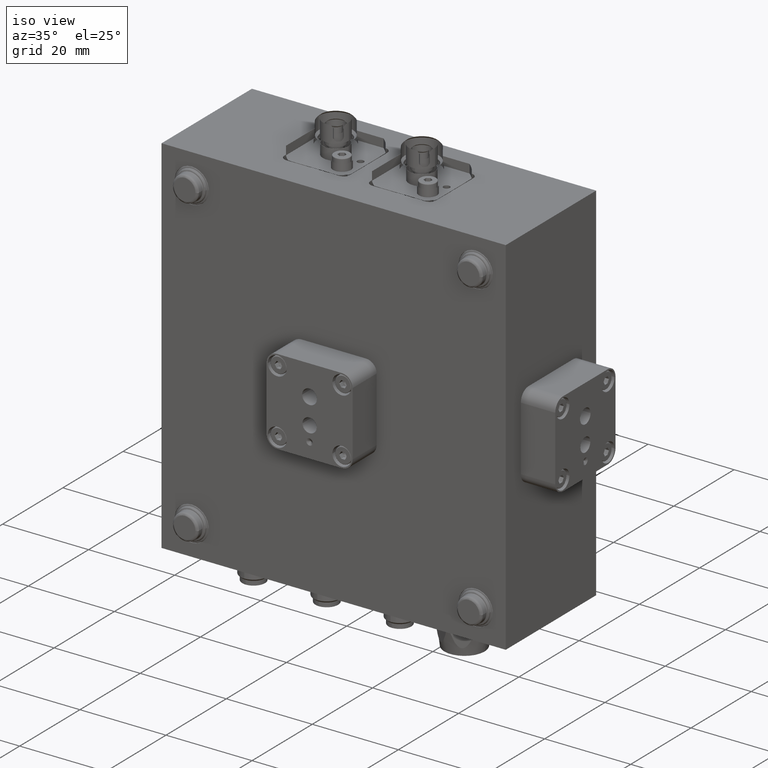
[diagram: clean part render]
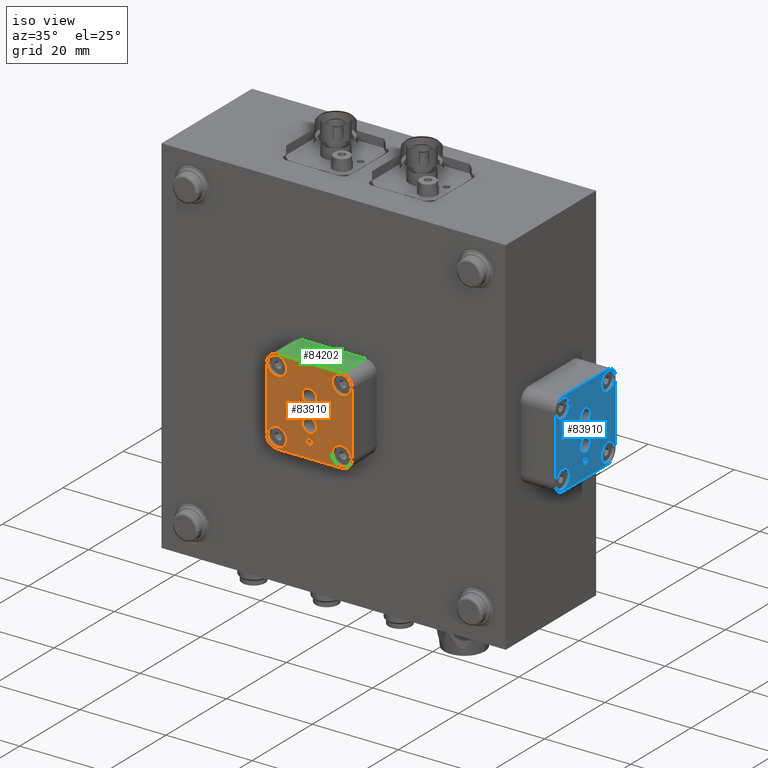
[diagram: same view with three faces highlighted in distinct colors, each labeled with its STEP entity id]
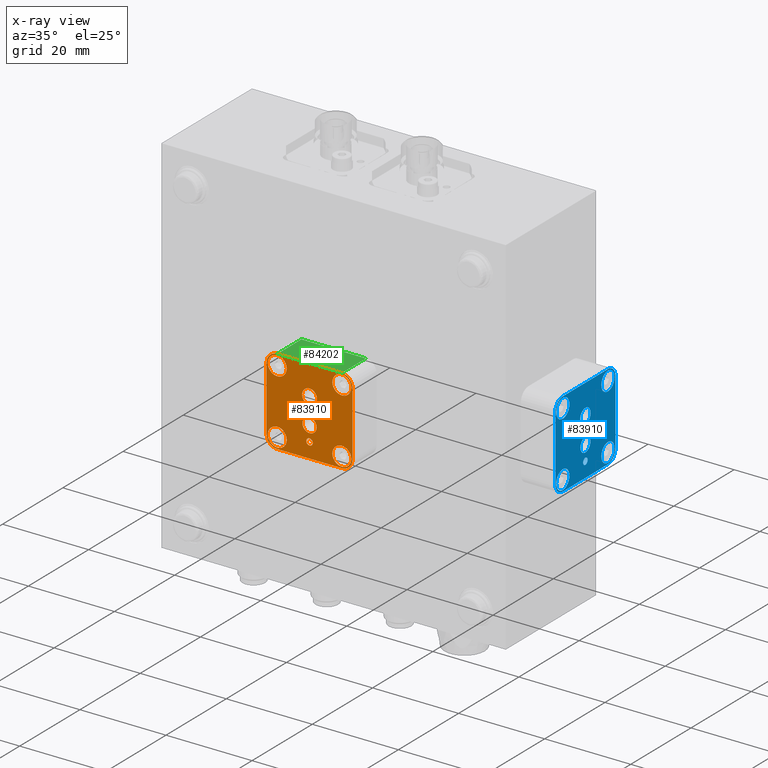
[diagram: x-ray of the same camera — body ghosted, the three highlighted faces saturated]
A machine part, iso view with three faces highlighted in distinct colors.
The next image is the same camera in x-ray (body ghosted, the three faces saturated) — at least one of them is partly hidden behind the body in this view.
Their STEP definitions:

[orange] entity #83910 — the highlighted planar face has unit normal (0, 1, -0).
#53152 = AXIS2_PLACEMENT_3D ( 'NONE', #53165, #53163, #53162 ) ;
#53155 = CIRCLE ( 'NONE', #53152, 1.727200000000005200 ) ;
#53162 = DIRECTION ( 'NONE',  ( 0.0000000000000000000, 0.0000000000000000000, 1.000000000000000000 ) ) ;
#53163 = DIRECTION ( 'NONE',  ( 0.0000000000000000000, 1.000000000000000000, -0.0000000000000000000 ) ) ;
#53165 = CARTESIAN_POINT ( 'NONE',  ( -3.000000000000010700, 0.0000000000000000000, -6.071532165918824800E-015 ) ) ;
#53470 = CARTESIAN_POINT ( 'NONE',  ( 6.500000000000026600, 0.0000000000000000000, 0.7500000000000022200 ) ) ;
#53508 = CARTESIAN_POINT ( 'NONE',  ( 6.500000000000026600, 0.0000000000000000000, -0.7499999999999997800 ) ) ;
#53554 = CIRCLE ( 'NONE', #53631, 0.7500000000000022200 ) ;
#53626 = DIRECTION ( 'NONE',  ( 0.0000000000000000000, 0.0000000000000000000, 1.000000000000000000 ) ) ;
#53628 = DIRECTION ( 'NONE',  ( 0.0000000000000000000, 1.000000000000000000, -0.0000000000000000000 ) ) ;
#53629 = CARTESIAN_POINT ( 'NONE',  ( 6.500000000000026600, 0.0000000000000000000, 0.0000000000000000000 ) ) ;
#53631 = AXIS2_PLACEMENT_3D ( 'NONE', #53629, #53628, #53626 ) ;
#53887 = CARTESIAN_POINT ( 'NONE',  ( -3.000000000000010700, 0.0000000000000000000, -1.727200000000005800 ) ) ;
#54124 = CARTESIAN_POINT ( 'NONE',  ( -3.000000000000010700, 0.0000000000000000000, 1.727199999999999000 ) ) ;
#54289 = DIRECTION ( 'NONE',  ( 0.0000000000000000000, 0.0000000000000000000, 1.000000000000000000 ) ) ;
#54290 = DIRECTION ( 'NONE',  ( 0.0000000000000000000, 1.000000000000000000, -0.0000000000000000000 ) ) ;
#54292 = CARTESIAN_POINT ( 'NONE',  ( 3.000000000000010200, 0.0000000000000000000, 0.0000000000000000000 ) ) ;
#54293 = AXIS2_PLACEMENT_3D ( 'NONE', #54292, #54290, #54289 ) ;
#54307 = CIRCLE ( 'NONE', #54293, 1.650000000000003900 ) ;
#54531 = CARTESIAN_POINT ( 'NONE',  ( -7.500000000000031100, 0.0000000000000000000, -5.300000000000022000 ) ) ;
#54607 = CARTESIAN_POINT ( 'NONE',  ( 3.000000000000010200, 0.0000000000000000000, 1.650000000000003900 ) ) ;
#54613 = CARTESIAN_POINT ( 'NONE',  ( 3.000000000000010200, 0.0000000000000000000, -1.649999999999998600 ) ) ;
#54655 = CARTESIAN_POINT ( 'NONE',  ( 7.500000000000024000, 0.0000000000000000000, 5.300000000000024700 ) ) ;
#54746 = DIRECTION ( 'NONE',  ( 0.0000000000000000000, 0.0000000000000000000, 1.000000000000000000 ) ) ;
#54747 = DIRECTION ( 'NONE',  ( 0.0000000000000000000, 1.000000000000000000, -0.0000000000000000000 ) ) ;
#54749 = CARTESIAN_POINT ( 'NONE',  ( -7.500000000000031100, 0.0000000000000000000, -7.500000000000022200 ) ) ;
#54760 = AXIS2_PLACEMENT_3D ( 'NONE', #54749, #54747, #54746 ) ;
#54762 = CIRCLE ( 'NONE', #54760, 2.200000000000000600 ) ;
#54769 = CARTESIAN_POINT ( 'NONE',  ( -7.500000000000031100, 0.0000000000000000000, -9.700000000000015300 ) ) ;
#55203 = CARTESIAN_POINT ( 'NONE',  ( -7.500000000000024000, 0.0000000000000000000, 5.300000000000030900 ) ) ;
#55407 = CARTESIAN_POINT ( 'NONE',  ( -7.500000000000024000, 0.0000000000000000000, 9.700000000000024200 ) ) ;
#55631 = DIRECTION ( 'NONE',  ( 0.0000000000000000000, 0.0000000000000000000, 1.000000000000000000 ) ) ;
#55633 = DIRECTION ( 'NONE',  ( 0.0000000000000000000, 1.000000000000000000, -0.0000000000000000000 ) ) ;
#55651 = CARTESIAN_POINT ( 'NONE',  ( -7.500000000000024000, 0.0000000000000000000, 7.500000000000024900 ) ) ;
#55659 = CIRCLE ( 'NONE', #55662, 2.199999999999999700 ) ;
#55662 = AXIS2_PLACEMENT_3D ( 'NONE', #55651, #55633, #55631 ) ;
#55750 = CIRCLE ( 'NONE', #55824, 2.199999999999999700 ) ;
#55757 = CARTESIAN_POINT ( 'NONE',  ( 7.500000000000024000, 0.0000000000000000000, 9.700000000000017100 ) ) ;
#55805 = DIRECTION ( 'NONE',  ( 0.0000000000000000000, 0.0000000000000000000, 1.000000000000000000 ) ) ;
#55807 = DIRECTION ( 'NONE',  ( 0.0000000000000000000, 1.000000000000000000, -0.0000000000000000000 ) ) ;
#55809 = CARTESIAN_POINT ( 'NONE',  ( 7.500000000000024000, 0.0000000000000000000, 7.500000000000017800 ) ) ;
#55824 = AXIS2_PLACEMENT_3D ( 'NONE', #55809, #55807, #55805 ) ;
#55992 = AXIS2_PLACEMENT_3D ( 'NONE', #56070, #56068, #56066 ) ;
#56066 = DIRECTION ( 'NONE',  ( 0.0000000000000000000, 0.0000000000000000000, 1.000000000000000000 ) ) ;
#56068 = DIRECTION ( 'NONE',  ( 0.0000000000000000000, 1.000000000000000000, -0.0000000000000000000 ) ) ;
#56070 = CARTESIAN_POINT ( 'NONE',  ( 7.500000000000017800, 0.0000000000000000000, -7.500000000000032900 ) ) ;
#56075 = CIRCLE ( 'NONE', #55992, 2.200000000000000600 ) ;
#56473 = CARTESIAN_POINT ( 'NONE',  ( 10.00000000000002700, 0.0000000000000000000, -7.500000000000029300 ) ) ;
#56475 = DIRECTION ( 'NONE',  ( 0.0000000000000000000, 0.0000000000000000000, 1.000000000000000000 ) ) ;
#56476 = DIRECTION ( 'NONE',  ( 0.0000000000000000000, 1.000000000000000000, -0.0000000000000000000 ) ) ;
#56477 = CARTESIAN_POINT ( 'NONE',  ( 7.500000000000024000, 0.0000000000000000000, 7.500000000000017800 ) ) ;
#56479 = AXIS2_PLACEMENT_3D ( 'NONE', #56477, #56476, #56475 ) ;
#56480 = CIRCLE ( 'NONE', #56479, 2.199999999999999700 ) ;
#56496 = CARTESIAN_POINT ( 'NONE',  ( 7.500000000000024000, 0.0000000000000000000, -10.00000000000002000 ) ) ;
#56508 = CARTESIAN_POINT ( 'NONE',  ( 7.500000000000017800, 0.0000000000000000000, -9.700000000000025900 ) ) ;
#56511 = CARTESIAN_POINT ( 'NONE',  ( 7.500000000000017800, 0.0000000000000000000, -5.300000000000031800 ) ) ;
#56513 = CARTESIAN_POINT ( 'NONE',  ( 7.500000000000024000, 0.0000000000000000000, 10.00000000000002000 ) ) ;
#56587 = AXIS2_PLACEMENT_3D ( 'NONE', #56754, #56752, #56751 ) ;
#56590 = CARTESIAN_POINT ( 'NONE',  ( -3.000000000000010700, 0.0000000000000000000, -6.071532165918824800E-015 ) ) ;
#56599 = CIRCLE ( 'NONE', #56632, 1.727200000000005200 ) ;
#56602 = CARTESIAN_POINT ( 'NONE',  ( 6.500000000000026600, 0.0000000000000000000, 0.0000000000000000000 ) ) ;
#56605 = DIRECTION ( 'NONE',  ( 7.395570986446962700E-032, 0.0000000000000000000, -1.000000000000000000 ) ) ;
#56606 = DIRECTION ( 'NONE',  ( 0.0000000000000000000, -1.000000000000000000, 0.0000000000000000000 ) ) ;
#56609 = AXIS2_PLACEMENT_3D ( 'NONE', #56602, #56708, #56706 ) ;
#56613 = AXIS2_PLACEMENT_3D ( 'NONE', #56639, #56606, #56605 ) ;
#56615 = CARTESIAN_POINT ( 'NONE',  ( -7.500000000000024000, 0.0000000000000000000, -10.00000000000004400 ) ) ;
#56620 = FACE_BOUND ( 'NONE', #83938, .T. ) ;
#56623 = FACE_BOUND ( 'NONE', #84062, .T. ) ;
#56625 = FACE_BOUND ( 'NONE', #83917, .T. ) ;
#56628 = FACE_OUTER_BOUND ( 'NONE', #84010, .T. ) ;
#56630 = FACE_BOUND ( 'NONE', #83872, .T. ) ;
#56632 = AXIS2_PLACEMENT_3D ( 'NONE', #56590, #56693, #56691 ) ;
#56634 = FACE_BOUND ( 'NONE', #83989, .T. ) ;
#56635 = FACE_BOUND ( 'NONE', #83810, .T. ) ;
#56639 = CARTESIAN_POINT ( 'NONE',  ( 7.500000000000019500, 0.0000000000000000000, -7.500000000000032900 ) ) ;
#56649 = FACE_BOUND ( 'NONE', #83948, .T. ) ;
#56651 = PLANE ( 'NONE',  #56613 ) ;
#56685 = AXIS2_PLACEMENT_3D ( 'NONE', #56768, #56766, #56764 ) ;
#56691 = DIRECTION ( 'NONE',  ( 0.0000000000000000000, 0.0000000000000000000, 1.000000000000000000 ) ) ;
#56693 = DIRECTION ( 'NONE',  ( 0.0000000000000000000, 1.000000000000000000, -0.0000000000000000000 ) ) ;
#56706 = DIRECTION ( 'NONE',  ( 0.0000000000000000000, 0.0000000000000000000, 1.000000000000000000 ) ) ;
#56708 = DIRECTION ( 'NONE',  ( 0.0000000000000000000, 1.000000000000000000, -0.0000000000000000000 ) ) ;
#56709 = CIRCLE ( 'NONE', #56609, 0.7500000000000022200 ) ;
#56726 = CARTESIAN_POINT ( 'NONE',  ( 10.00000000000002300, 0.0000000000000000000, 7.500000000000018700 ) ) ;
#56741 = CIRCLE ( 'NONE', #56759, 2.500000000000006700 ) ;
#56751 = DIRECTION ( 'NONE',  ( 0.0000000000000000000, 0.0000000000000000000, 1.000000000000000000 ) ) ;
#56752 = DIRECTION ( 'NONE',  ( 0.0000000000000000000, 1.000000000000000000, -0.0000000000000000000 ) ) ;
#56754 = CARTESIAN_POINT ( 'NONE',  ( -7.500000000000031100, 0.0000000000000000000, -7.500000000000022200 ) ) ;
#56755 = CIRCLE ( 'NONE', #56587, 2.200000000000000600 ) ;
#56759 = AXIS2_PLACEMENT_3D ( 'NONE', #56819, #56818, #56816 ) ;
#56764 = DIRECTION ( 'NONE',  ( 0.0000000000000000000, 0.0000000000000000000, 1.000000000000000000 ) ) ;
#56766 = DIRECTION ( 'NONE',  ( 0.0000000000000000000, 1.000000000000000000, -0.0000000000000000000 ) ) ;
#56768 = CARTESIAN_POINT ( 'NONE',  ( 3.000000000000010200, 0.0000000000000000000, 0.0000000000000000000 ) ) ;
#56772 = CIRCLE ( 'NONE', #56685, 1.650000000000003900 ) ;
#56802 = DIRECTION ( 'NONE',  ( 1.000000000000000000, 0.0000000000000000000, 7.395570986446961600E-032 ) ) ;
#56803 = VECTOR ( 'NONE', #56802, 1000.000000000000000 ) ;
#56805 = CARTESIAN_POINT ( 'NONE',  ( -7.500000000000031100, 0.0000000000000000000, 10.00000000000002000 ) ) ;
#56816 = DIRECTION ( 'NONE',  ( 0.0000000000000000000, 0.0000000000000000000, 1.000000000000000000 ) ) ;
#56818 = DIRECTION ( 'NONE',  ( 0.0000000000000000000, 1.000000000000000000, -0.0000000000000000000 ) ) ;
#56819 = CARTESIAN_POINT ( 'NONE',  ( -7.500000000000031100, 0.0000000000000000000, -7.500000000000025800 ) ) ;
#56824 = LINE ( 'NONE', #56805, #56803 ) ;
#56846 = AXIS2_PLACEMENT_3D ( 'NONE', #56909, #56907, #56905 ) ;
#56849 = DIRECTION ( 'NONE',  ( -7.395570986446961600E-032, -0.0000000000000000000, 1.000000000000000000 ) ) ;
#56851 = VECTOR ( 'NONE', #56849, 1000.000000000000000 ) ;
#56853 = CARTESIAN_POINT ( 'NONE',  ( -10.00000000000002700, 0.0000000000000000000, -7.500000000000029300 ) ) ;
#56858 = LINE ( 'NONE', #56853, #56851 ) ;
#56903 = DIRECTION ( 'NONE',  ( 0.0000000000000000000, 1.000000000000000000, -0.0000000000000000000 ) ) ;
#56905 = DIRECTION ( 'NONE',  ( 0.0000000000000000000, 0.0000000000000000000, 1.000000000000000000 ) ) ;
#56907 = DIRECTION ( 'NONE',  ( 0.0000000000000000000, 1.000000000000000000, -0.0000000000000000000 ) ) ;
#56909 = CARTESIAN_POINT ( 'NONE',  ( -7.500000000000027500, 0.0000000000000000000, 7.500000000000024000 ) ) ;
#56910 = CIRCLE ( 'NONE', #56846, 2.500000000000005800 ) ;
#56961 = CIRCLE ( 'NONE', #57021, 2.199999999999999700 ) ;
#56963 = LINE ( 'NONE', #57088, #57038 ) ;
#57000 = CARTESIAN_POINT ( 'NONE',  ( -10.00000000000002700, 0.0000000000000000000, 7.500000000000020400 ) ) ;
#57002 = DIRECTION ( 'NONE',  ( 0.0000000000000000000, 0.0000000000000000000, 1.000000000000000000 ) ) ;
#57018 = CARTESIAN_POINT ( 'NONE',  ( -7.500000000000024000, 0.0000000000000000000, 7.500000000000024900 ) ) ;
#57021 = AXIS2_PLACEMENT_3D ( 'NONE', #57018, #56903, #57002 ) ;
#57037 = DIRECTION ( 'NONE',  ( 7.395570986446961600E-032, 0.0000000000000000000, -1.000000000000000000 ) ) ;
#57038 = VECTOR ( 'NONE', #57037, 1000.000000000000000 ) ;
#57088 = CARTESIAN_POINT ( 'NONE',  ( 10.00000000000002700, 0.0000000000000000000, -7.500000000000029300 ) ) ;
#57102 = CIRCLE ( 'NONE', #57171, 2.500000000000004900 ) ;
#57110 = DIRECTION ( 'NONE',  ( 0.0000000000000000000, 0.0000000000000000000, 1.000000000000000000 ) ) ;
#57113 = DIRECTION ( 'NONE',  ( 0.0000000000000000000, 1.000000000000000000, -0.0000000000000000000 ) ) ;
#57114 = LINE ( 'NONE', #57257, #57255 ) ;
#57119 = CIRCLE ( 'NONE', #57143, 2.200000000000000600 ) ;
#57130 = CARTESIAN_POINT ( 'NONE',  ( 7.500000000000017800, 0.0000000000000000000, -7.500000000000032900 ) ) ;
#57143 = AXIS2_PLACEMENT_3D ( 'NONE', #57130, #57113, #57110 ) ;
#57148 = CARTESIAN_POINT ( 'NONE',  ( -10.00000000000002300, 0.0000000000000000000, -7.500000000000029300 ) ) ;
#57166 = DIRECTION ( 'NONE',  ( 0.0000000000000000000, 0.0000000000000000000, 1.000000000000000000 ) ) ;
#57168 = DIRECTION ( 'NONE',  ( 0.0000000000000000000, 1.000000000000000000, -0.0000000000000000000 ) ) ;
#57170 = CARTESIAN_POINT ( 'NONE',  ( 7.500000000000025800, 0.0000000000000000000, 7.500000000000017800 ) ) ;
#57171 = AXIS2_PLACEMENT_3D ( 'NONE', #57170, #57168, #57166 ) ;
#57177 = CIRCLE ( 'NONE', #57278, 2.500000000000005800 ) ;
#57254 = DIRECTION ( 'NONE',  ( -1.000000000000000000, 0.0000000000000000000, -7.395570986446961600E-032 ) ) ;
#57255 = VECTOR ( 'NONE', #57254, 1000.000000000000000 ) ;
#57257 = CARTESIAN_POINT ( 'NONE',  ( -7.500000000000024000, 0.0000000000000000000, -10.00000000000004400 ) ) ;
#57261 = CARTESIAN_POINT ( 'NONE',  ( -7.500000000000031100, 0.0000000000000000000, 10.00000000000002300 ) ) ;
#57274 = DIRECTION ( 'NONE',  ( 0.0000000000000000000, 0.0000000000000000000, -1.000000000000000000 ) ) ;
#57275 = DIRECTION ( 'NONE',  ( 0.0000000000000000000, 1.000000000000000000, -0.0000000000000000000 ) ) ;
#57276 = CARTESIAN_POINT ( 'NONE',  ( 7.500000000000019500, 0.0000000000000000000, -7.500000000000032900 ) ) ;
#57278 = AXIS2_PLACEMENT_3D ( 'NONE', #57276, #57275, #57274 ) ;
#83260 = VERTEX_POINT ( 'NONE', #53470 ) ;
#83267 = VERTEX_POINT ( 'NONE', #53508 ) ;
#83279 = EDGE_CURVE ( 'NONE', #83267, #83260, #53554, .T. ) ;
#83327 = VERTEX_POINT ( 'NONE', #53887 ) ;
#83371 = VERTEX_POINT ( 'NONE', #54124 ) ;
#83379 = EDGE_CURVE ( 'NONE', #83327, #83371, #53155, .T. ) ;
#83413 = EDGE_CURVE ( 'NONE', #83515, #83512, #54307, .T. ) ;
#83491 = VERTEX_POINT ( 'NONE', #54531 ) ;
#83512 = VERTEX_POINT ( 'NONE', #54607 ) ;
#83515 = VERTEX_POINT ( 'NONE', #54613 ) ;
#83535 = VERTEX_POINT ( 'NONE', #54655 ) ;
#83536 = VERTEX_POINT ( 'NONE', #54769 ) ;
#83547 = EDGE_CURVE ( 'NONE', #83536, #83491, #54762, .T. ) ;
#83637 = VERTEX_POINT ( 'NONE', #55203 ) ;
#83650 = VERTEX_POINT ( 'NONE', #55407 ) ;
#83694 = EDGE_CURVE ( 'NONE', #83637, #83650, #55659, .T. ) ;
#83747 = VERTEX_POINT ( 'NONE', #55757 ) ;
#83749 = EDGE_CURVE ( 'NONE', #83535, #83747, #55750, .T. ) ;
#83790 = EDGE_CURVE ( 'NONE', #83891, #83885, #56075, .T. ) ;
#83810 = EDGE_LOOP ( 'NONE', ( #83915, #83866 ) ) ;
#83815 = ORIENTED_EDGE ( 'NONE', *, *, #83379, .F. ) ;
#83866 = ORIENTED_EDGE ( 'NONE', *, *, #83279, .F. ) ;
#83872 = EDGE_LOOP ( 'NONE', ( #83933, #83815 ) ) ;
#83874 = ORIENTED_EDGE ( 'NONE', *, *, #83943, .F. ) ;
#83885 = VERTEX_POINT ( 'NONE', #56511 ) ;
#83891 = VERTEX_POINT ( 'NONE', #56508 ) ;
#83895 = VERTEX_POINT ( 'NONE', #56513 ) ;
#83898 = EDGE_CURVE ( 'NONE', #83747, #83535, #56480, .T. ) ;
#83901 = ORIENTED_EDGE ( 'NONE', *, *, #83749, .F. ) ;
#83903 = VERTEX_POINT ( 'NONE', #56473 ) ;
#83904 = VERTEX_POINT ( 'NONE', #56496 ) ;
#83910 = ADVANCED_FACE ( 'NONE', ( #56635, #56630, #56625, #56620, #56649, #56634, #56628, #56623 ), #56651, .F. ) ;
#83912 = VERTEX_POINT ( 'NONE', #56615 ) ;
#83915 = ORIENTED_EDGE ( 'NONE', *, *, #83925, .F. ) ;
#83917 = EDGE_LOOP ( 'NONE', ( #83874, #83940 ) ) ;
#83925 = EDGE_CURVE ( 'NONE', #83260, #83267, #56709, .T. ) ;
#83930 = EDGE_CURVE ( 'NONE', #83371, #83327, #56599, .T. ) ;
#83933 = ORIENTED_EDGE ( 'NONE', *, *, #83930, .F. ) ;
#83938 = EDGE_LOOP ( 'NONE', ( #83987, #83951 ) ) ;
#83940 = ORIENTED_EDGE ( 'NONE', *, *, #83413, .F. ) ;
#83943 = EDGE_CURVE ( 'NONE', #83512, #83515, #56772, .T. ) ;
#83944 = EDGE_CURVE ( 'NONE', #83491, #83536, #56755, .T. ) ;
#83948 = EDGE_LOOP ( 'NONE', ( #84009, #84003 ) ) ;
#83951 = ORIENTED_EDGE ( 'NONE', *, *, #83547, .F. ) ;
#83955 = ORIENTED_EDGE ( 'NONE', *, *, #83969, .T. ) ;
#83958 = EDGE_CURVE ( 'NONE', #83912, #84071, #56741, .T. ) ;
#83960 = VERTEX_POINT ( 'NONE', #56726 ) ;
#83962 = EDGE_CURVE ( 'NONE', #84083, #83895, #56824, .T. ) ;
#83968 = ORIENTED_EDGE ( 'NONE', *, *, #83958, .T. ) ;
#83969 = EDGE_CURVE ( 'NONE', #84071, #83995, #56858, .T. ) ;
#83977 = EDGE_CURVE ( 'NONE', #83995, #84083, #56910, .T. ) ;
#83985 = EDGE_CURVE ( 'NONE', #83650, #83637, #56961, .T. ) ;
#83987 = ORIENTED_EDGE ( 'NONE', *, *, #83944, .F. ) ;
#83989 = EDGE_LOOP ( 'NONE', ( #83992, #83901 ) ) ;
#83992 = ORIENTED_EDGE ( 'NONE', *, *, #83898, .F. ) ;
#83995 = VERTEX_POINT ( 'NONE', #57000 ) ;
#84003 = ORIENTED_EDGE ( 'NONE', *, *, #83694, .F. ) ;
#84009 = ORIENTED_EDGE ( 'NONE', *, *, #83985, .F. ) ;
#84010 = EDGE_LOOP ( 'NONE', ( #84015, #84080, #83968, #83955, #84036, #84043, #84049, #84058 ) ) ;
#84015 = ORIENTED_EDGE ( 'NONE', *, *, #84078, .T. ) ;
#84035 = EDGE_CURVE ( 'NONE', #83960, #83903, #56963, .T. ) ;
#84036 = ORIENTED_EDGE ( 'NONE', *, *, #83977, .T. ) ;
#84043 = ORIENTED_EDGE ( 'NONE', *, *, #83962, .T. ) ;
#84049 = ORIENTED_EDGE ( 'NONE', *, *, #84069, .T. ) ;
#84053 = EDGE_CURVE ( 'NONE', #83885, #83891, #57119, .T. ) ;
#84058 = ORIENTED_EDGE ( 'NONE', *, *, #84035, .T. ) ;
#84062 = EDGE_LOOP ( 'NONE', ( #84118, #84127 ) ) ;
#84069 = EDGE_CURVE ( 'NONE', #83895, #83960, #57102, .T. ) ;
#84071 = VERTEX_POINT ( 'NONE', #57148 ) ;
#84078 = EDGE_CURVE ( 'NONE', #83903, #83904, #57177, .T. ) ;
#84080 = ORIENTED_EDGE ( 'NONE', *, *, #84081, .T. ) ;
#84081 = EDGE_CURVE ( 'NONE', #83904, #83912, #57114, .T. ) ;
#84083 = VERTEX_POINT ( 'NONE', #57261 ) ;
#84118 = ORIENTED_EDGE ( 'NONE', *, *, #84053, .F. ) ;
#84127 = ORIENTED_EDGE ( 'NONE', *, *, #83790, .F. ) ;

[blue] entity #83910 — the highlighted planar face has unit normal (-1, -0, 0).
#53152 = AXIS2_PLACEMENT_3D ( 'NONE', #53165, #53163, #53162 ) ;
#53155 = CIRCLE ( 'NONE', #53152, 1.727200000000005200 ) ;
#53162 = DIRECTION ( 'NONE',  ( 0.0000000000000000000, 0.0000000000000000000, 1.000000000000000000 ) ) ;
#53163 = DIRECTION ( 'NONE',  ( 0.0000000000000000000, 1.000000000000000000, -0.0000000000000000000 ) ) ;
#53165 = CARTESIAN_POINT ( 'NONE',  ( -3.000000000000010700, 0.0000000000000000000, -6.071532165918824800E-015 ) ) ;
#53470 = CARTESIAN_POINT ( 'NONE',  ( 6.500000000000026600, 0.0000000000000000000, 0.7500000000000022200 ) ) ;
#53508 = CARTESIAN_POINT ( 'NONE',  ( 6.500000000000026600, 0.0000000000000000000, -0.7499999999999997800 ) ) ;
#53554 = CIRCLE ( 'NONE', #53631, 0.7500000000000022200 ) ;
#53626 = DIRECTION ( 'NONE',  ( 0.0000000000000000000, 0.0000000000000000000, 1.000000000000000000 ) ) ;
#53628 = DIRECTION ( 'NONE',  ( 0.0000000000000000000, 1.000000000000000000, -0.0000000000000000000 ) ) ;
#53629 = CARTESIAN_POINT ( 'NONE',  ( 6.500000000000026600, 0.0000000000000000000, 0.0000000000000000000 ) ) ;
#53631 = AXIS2_PLACEMENT_3D ( 'NONE', #53629, #53628, #53626 ) ;
#53887 = CARTESIAN_POINT ( 'NONE',  ( -3.000000000000010700, 0.0000000000000000000, -1.727200000000005800 ) ) ;
#54124 = CARTESIAN_POINT ( 'NONE',  ( -3.000000000000010700, 0.0000000000000000000, 1.727199999999999000 ) ) ;
#54289 = DIRECTION ( 'NONE',  ( 0.0000000000000000000, 0.0000000000000000000, 1.000000000000000000 ) ) ;
#54290 = DIRECTION ( 'NONE',  ( 0.0000000000000000000, 1.000000000000000000, -0.0000000000000000000 ) ) ;
#54292 = CARTESIAN_POINT ( 'NONE',  ( 3.000000000000010200, 0.0000000000000000000, 0.0000000000000000000 ) ) ;
#54293 = AXIS2_PLACEMENT_3D ( 'NONE', #54292, #54290, #54289 ) ;
#54307 = CIRCLE ( 'NONE', #54293, 1.650000000000003900 ) ;
#54531 = CARTESIAN_POINT ( 'NONE',  ( -7.500000000000031100, 0.0000000000000000000, -5.300000000000022000 ) ) ;
#54607 = CARTESIAN_POINT ( 'NONE',  ( 3.000000000000010200, 0.0000000000000000000, 1.650000000000003900 ) ) ;
#54613 = CARTESIAN_POINT ( 'NONE',  ( 3.000000000000010200, 0.0000000000000000000, -1.649999999999998600 ) ) ;
#54655 = CARTESIAN_POINT ( 'NONE',  ( 7.500000000000024000, 0.0000000000000000000, 5.300000000000024700 ) ) ;
#54746 = DIRECTION ( 'NONE',  ( 0.0000000000000000000, 0.0000000000000000000, 1.000000000000000000 ) ) ;
#54747 = DIRECTION ( 'NONE',  ( 0.0000000000000000000, 1.000000000000000000, -0.0000000000000000000 ) ) ;
#54749 = CARTESIAN_POINT ( 'NONE',  ( -7.500000000000031100, 0.0000000000000000000, -7.500000000000022200 ) ) ;
#54760 = AXIS2_PLACEMENT_3D ( 'NONE', #54749, #54747, #54746 ) ;
#54762 = CIRCLE ( 'NONE', #54760, 2.200000000000000600 ) ;
#54769 = CARTESIAN_POINT ( 'NONE',  ( -7.500000000000031100, 0.0000000000000000000, -9.700000000000015300 ) ) ;
#55203 = CARTESIAN_POINT ( 'NONE',  ( -7.500000000000024000, 0.0000000000000000000, 5.300000000000030900 ) ) ;
#55407 = CARTESIAN_POINT ( 'NONE',  ( -7.500000000000024000, 0.0000000000000000000, 9.700000000000024200 ) ) ;
#55631 = DIRECTION ( 'NONE',  ( 0.0000000000000000000, 0.0000000000000000000, 1.000000000000000000 ) ) ;
#55633 = DIRECTION ( 'NONE',  ( 0.0000000000000000000, 1.000000000000000000, -0.0000000000000000000 ) ) ;
#55651 = CARTESIAN_POINT ( 'NONE',  ( -7.500000000000024000, 0.0000000000000000000, 7.500000000000024900 ) ) ;
#55659 = CIRCLE ( 'NONE', #55662, 2.199999999999999700 ) ;
#55662 = AXIS2_PLACEMENT_3D ( 'NONE', #55651, #55633, #55631 ) ;
#55750 = CIRCLE ( 'NONE', #55824, 2.199999999999999700 ) ;
#55757 = CARTESIAN_POINT ( 'NONE',  ( 7.500000000000024000, 0.0000000000000000000, 9.700000000000017100 ) ) ;
#55805 = DIRECTION ( 'NONE',  ( 0.0000000000000000000, 0.0000000000000000000, 1.000000000000000000 ) ) ;
#55807 = DIRECTION ( 'NONE',  ( 0.0000000000000000000, 1.000000000000000000, -0.0000000000000000000 ) ) ;
#55809 = CARTESIAN_POINT ( 'NONE',  ( 7.500000000000024000, 0.0000000000000000000, 7.500000000000017800 ) ) ;
#55824 = AXIS2_PLACEMENT_3D ( 'NONE', #55809, #55807, #55805 ) ;
#55992 = AXIS2_PLACEMENT_3D ( 'NONE', #56070, #56068, #56066 ) ;
#56066 = DIRECTION ( 'NONE',  ( 0.0000000000000000000, 0.0000000000000000000, 1.000000000000000000 ) ) ;
#56068 = DIRECTION ( 'NONE',  ( 0.0000000000000000000, 1.000000000000000000, -0.0000000000000000000 ) ) ;
#56070 = CARTESIAN_POINT ( 'NONE',  ( 7.500000000000017800, 0.0000000000000000000, -7.500000000000032900 ) ) ;
#56075 = CIRCLE ( 'NONE', #55992, 2.200000000000000600 ) ;
#56473 = CARTESIAN_POINT ( 'NONE',  ( 10.00000000000002700, 0.0000000000000000000, -7.500000000000029300 ) ) ;
#56475 = DIRECTION ( 'NONE',  ( 0.0000000000000000000, 0.0000000000000000000, 1.000000000000000000 ) ) ;
#56476 = DIRECTION ( 'NONE',  ( 0.0000000000000000000, 1.000000000000000000, -0.0000000000000000000 ) ) ;
#56477 = CARTESIAN_POINT ( 'NONE',  ( 7.500000000000024000, 0.0000000000000000000, 7.500000000000017800 ) ) ;
#56479 = AXIS2_PLACEMENT_3D ( 'NONE', #56477, #56476, #56475 ) ;
#56480 = CIRCLE ( 'NONE', #56479, 2.199999999999999700 ) ;
#56496 = CARTESIAN_POINT ( 'NONE',  ( 7.500000000000024000, 0.0000000000000000000, -10.00000000000002000 ) ) ;
#56508 = CARTESIAN_POINT ( 'NONE',  ( 7.500000000000017800, 0.0000000000000000000, -9.700000000000025900 ) ) ;
#56511 = CARTESIAN_POINT ( 'NONE',  ( 7.500000000000017800, 0.0000000000000000000, -5.300000000000031800 ) ) ;
#56513 = CARTESIAN_POINT ( 'NONE',  ( 7.500000000000024000, 0.0000000000000000000, 10.00000000000002000 ) ) ;
#56587 = AXIS2_PLACEMENT_3D ( 'NONE', #56754, #56752, #56751 ) ;
#56590 = CARTESIAN_POINT ( 'NONE',  ( -3.000000000000010700, 0.0000000000000000000, -6.071532165918824800E-015 ) ) ;
#56599 = CIRCLE ( 'NONE', #56632, 1.727200000000005200 ) ;
#56602 = CARTESIAN_POINT ( 'NONE',  ( 6.500000000000026600, 0.0000000000000000000, 0.0000000000000000000 ) ) ;
#56605 = DIRECTION ( 'NONE',  ( 7.395570986446962700E-032, 0.0000000000000000000, -1.000000000000000000 ) ) ;
#56606 = DIRECTION ( 'NONE',  ( 0.0000000000000000000, -1.000000000000000000, 0.0000000000000000000 ) ) ;
#56609 = AXIS2_PLACEMENT_3D ( 'NONE', #56602, #56708, #56706 ) ;
#56613 = AXIS2_PLACEMENT_3D ( 'NONE', #56639, #56606, #56605 ) ;
#56615 = CARTESIAN_POINT ( 'NONE',  ( -7.500000000000024000, 0.0000000000000000000, -10.00000000000004400 ) ) ;
#56620 = FACE_BOUND ( 'NONE', #83938, .T. ) ;
#56623 = FACE_BOUND ( 'NONE', #84062, .T. ) ;
#56625 = FACE_BOUND ( 'NONE', #83917, .T. ) ;
#56628 = FACE_OUTER_BOUND ( 'NONE', #84010, .T. ) ;
#56630 = FACE_BOUND ( 'NONE', #83872, .T. ) ;
#56632 = AXIS2_PLACEMENT_3D ( 'NONE', #56590, #56693, #56691 ) ;
#56634 = FACE_BOUND ( 'NONE', #83989, .T. ) ;
#56635 = FACE_BOUND ( 'NONE', #83810, .T. ) ;
#56639 = CARTESIAN_POINT ( 'NONE',  ( 7.500000000000019500, 0.0000000000000000000, -7.500000000000032900 ) ) ;
#56649 = FACE_BOUND ( 'NONE', #83948, .T. ) ;
#56651 = PLANE ( 'NONE',  #56613 ) ;
#56685 = AXIS2_PLACEMENT_3D ( 'NONE', #56768, #56766, #56764 ) ;
#56691 = DIRECTION ( 'NONE',  ( 0.0000000000000000000, 0.0000000000000000000, 1.000000000000000000 ) ) ;
#56693 = DIRECTION ( 'NONE',  ( 0.0000000000000000000, 1.000000000000000000, -0.0000000000000000000 ) ) ;
#56706 = DIRECTION ( 'NONE',  ( 0.0000000000000000000, 0.0000000000000000000, 1.000000000000000000 ) ) ;
#56708 = DIRECTION ( 'NONE',  ( 0.0000000000000000000, 1.000000000000000000, -0.0000000000000000000 ) ) ;
#56709 = CIRCLE ( 'NONE', #56609, 0.7500000000000022200 ) ;
#56726 = CARTESIAN_POINT ( 'NONE',  ( 10.00000000000002300, 0.0000000000000000000, 7.500000000000018700 ) ) ;
#56741 = CIRCLE ( 'NONE', #56759, 2.500000000000006700 ) ;
#56751 = DIRECTION ( 'NONE',  ( 0.0000000000000000000, 0.0000000000000000000, 1.000000000000000000 ) ) ;
#56752 = DIRECTION ( 'NONE',  ( 0.0000000000000000000, 1.000000000000000000, -0.0000000000000000000 ) ) ;
#56754 = CARTESIAN_POINT ( 'NONE',  ( -7.500000000000031100, 0.0000000000000000000, -7.500000000000022200 ) ) ;
#56755 = CIRCLE ( 'NONE', #56587, 2.200000000000000600 ) ;
#56759 = AXIS2_PLACEMENT_3D ( 'NONE', #56819, #56818, #56816 ) ;
#56764 = DIRECTION ( 'NONE',  ( 0.0000000000000000000, 0.0000000000000000000, 1.000000000000000000 ) ) ;
#56766 = DIRECTION ( 'NONE',  ( 0.0000000000000000000, 1.000000000000000000, -0.0000000000000000000 ) ) ;
#56768 = CARTESIAN_POINT ( 'NONE',  ( 3.000000000000010200, 0.0000000000000000000, 0.0000000000000000000 ) ) ;
#56772 = CIRCLE ( 'NONE', #56685, 1.650000000000003900 ) ;
#56802 = DIRECTION ( 'NONE',  ( 1.000000000000000000, 0.0000000000000000000, 7.395570986446961600E-032 ) ) ;
#56803 = VECTOR ( 'NONE', #56802, 1000.000000000000000 ) ;
#56805 = CARTESIAN_POINT ( 'NONE',  ( -7.500000000000031100, 0.0000000000000000000, 10.00000000000002000 ) ) ;
#56816 = DIRECTION ( 'NONE',  ( 0.0000000000000000000, 0.0000000000000000000, 1.000000000000000000 ) ) ;
#56818 = DIRECTION ( 'NONE',  ( 0.0000000000000000000, 1.000000000000000000, -0.0000000000000000000 ) ) ;
#56819 = CARTESIAN_POINT ( 'NONE',  ( -7.500000000000031100, 0.0000000000000000000, -7.500000000000025800 ) ) ;
#56824 = LINE ( 'NONE', #56805, #56803 ) ;
#56846 = AXIS2_PLACEMENT_3D ( 'NONE', #56909, #56907, #56905 ) ;
#56849 = DIRECTION ( 'NONE',  ( -7.395570986446961600E-032, -0.0000000000000000000, 1.000000000000000000 ) ) ;
#56851 = VECTOR ( 'NONE', #56849, 1000.000000000000000 ) ;
#56853 = CARTESIAN_POINT ( 'NONE',  ( -10.00000000000002700, 0.0000000000000000000, -7.500000000000029300 ) ) ;
#56858 = LINE ( 'NONE', #56853, #56851 ) ;
#56903 = DIRECTION ( 'NONE',  ( 0.0000000000000000000, 1.000000000000000000, -0.0000000000000000000 ) ) ;
#56905 = DIRECTION ( 'NONE',  ( 0.0000000000000000000, 0.0000000000000000000, 1.000000000000000000 ) ) ;
#56907 = DIRECTION ( 'NONE',  ( 0.0000000000000000000, 1.000000000000000000, -0.0000000000000000000 ) ) ;
#56909 = CARTESIAN_POINT ( 'NONE',  ( -7.500000000000027500, 0.0000000000000000000, 7.500000000000024000 ) ) ;
#56910 = CIRCLE ( 'NONE', #56846, 2.500000000000005800 ) ;
#56961 = CIRCLE ( 'NONE', #57021, 2.199999999999999700 ) ;
#56963 = LINE ( 'NONE', #57088, #57038 ) ;
#57000 = CARTESIAN_POINT ( 'NONE',  ( -10.00000000000002700, 0.0000000000000000000, 7.500000000000020400 ) ) ;
#57002 = DIRECTION ( 'NONE',  ( 0.0000000000000000000, 0.0000000000000000000, 1.000000000000000000 ) ) ;
#57018 = CARTESIAN_POINT ( 'NONE',  ( -7.500000000000024000, 0.0000000000000000000, 7.500000000000024900 ) ) ;
#57021 = AXIS2_PLACEMENT_3D ( 'NONE', #57018, #56903, #57002 ) ;
#57037 = DIRECTION ( 'NONE',  ( 7.395570986446961600E-032, 0.0000000000000000000, -1.000000000000000000 ) ) ;
#57038 = VECTOR ( 'NONE', #57037, 1000.000000000000000 ) ;
#57088 = CARTESIAN_POINT ( 'NONE',  ( 10.00000000000002700, 0.0000000000000000000, -7.500000000000029300 ) ) ;
#57102 = CIRCLE ( 'NONE', #57171, 2.500000000000004900 ) ;
#57110 = DIRECTION ( 'NONE',  ( 0.0000000000000000000, 0.0000000000000000000, 1.000000000000000000 ) ) ;
#57113 = DIRECTION ( 'NONE',  ( 0.0000000000000000000, 1.000000000000000000, -0.0000000000000000000 ) ) ;
#57114 = LINE ( 'NONE', #57257, #57255 ) ;
#57119 = CIRCLE ( 'NONE', #57143, 2.200000000000000600 ) ;
#57130 = CARTESIAN_POINT ( 'NONE',  ( 7.500000000000017800, 0.0000000000000000000, -7.500000000000032900 ) ) ;
#57143 = AXIS2_PLACEMENT_3D ( 'NONE', #57130, #57113, #57110 ) ;
#57148 = CARTESIAN_POINT ( 'NONE',  ( -10.00000000000002300, 0.0000000000000000000, -7.500000000000029300 ) ) ;
#57166 = DIRECTION ( 'NONE',  ( 0.0000000000000000000, 0.0000000000000000000, 1.000000000000000000 ) ) ;
#57168 = DIRECTION ( 'NONE',  ( 0.0000000000000000000, 1.000000000000000000, -0.0000000000000000000 ) ) ;
#57170 = CARTESIAN_POINT ( 'NONE',  ( 7.500000000000025800, 0.0000000000000000000, 7.500000000000017800 ) ) ;
#57171 = AXIS2_PLACEMENT_3D ( 'NONE', #57170, #57168, #57166 ) ;
#57177 = CIRCLE ( 'NONE', #57278, 2.500000000000005800 ) ;
#57254 = DIRECTION ( 'NONE',  ( -1.000000000000000000, 0.0000000000000000000, -7.395570986446961600E-032 ) ) ;
#57255 = VECTOR ( 'NONE', #57254, 1000.000000000000000 ) ;
#57257 = CARTESIAN_POINT ( 'NONE',  ( -7.500000000000024000, 0.0000000000000000000, -10.00000000000004400 ) ) ;
#57261 = CARTESIAN_POINT ( 'NONE',  ( -7.500000000000031100, 0.0000000000000000000, 10.00000000000002300 ) ) ;
#57274 = DIRECTION ( 'NONE',  ( 0.0000000000000000000, 0.0000000000000000000, -1.000000000000000000 ) ) ;
#57275 = DIRECTION ( 'NONE',  ( 0.0000000000000000000, 1.000000000000000000, -0.0000000000000000000 ) ) ;
#57276 = CARTESIAN_POINT ( 'NONE',  ( 7.500000000000019500, 0.0000000000000000000, -7.500000000000032900 ) ) ;
#57278 = AXIS2_PLACEMENT_3D ( 'NONE', #57276, #57275, #57274 ) ;
#83260 = VERTEX_POINT ( 'NONE', #53470 ) ;
#83267 = VERTEX_POINT ( 'NONE', #53508 ) ;
#83279 = EDGE_CURVE ( 'NONE', #83267, #83260, #53554, .T. ) ;
#83327 = VERTEX_POINT ( 'NONE', #53887 ) ;
#83371 = VERTEX_POINT ( 'NONE', #54124 ) ;
#83379 = EDGE_CURVE ( 'NONE', #83327, #83371, #53155, .T. ) ;
#83413 = EDGE_CURVE ( 'NONE', #83515, #83512, #54307, .T. ) ;
#83491 = VERTEX_POINT ( 'NONE', #54531 ) ;
#83512 = VERTEX_POINT ( 'NONE', #54607 ) ;
#83515 = VERTEX_POINT ( 'NONE', #54613 ) ;
#83535 = VERTEX_POINT ( 'NONE', #54655 ) ;
#83536 = VERTEX_POINT ( 'NONE', #54769 ) ;
#83547 = EDGE_CURVE ( 'NONE', #83536, #83491, #54762, .T. ) ;
#83637 = VERTEX_POINT ( 'NONE', #55203 ) ;
#83650 = VERTEX_POINT ( 'NONE', #55407 ) ;
#83694 = EDGE_CURVE ( 'NONE', #83637, #83650, #55659, .T. ) ;
#83747 = VERTEX_POINT ( 'NONE', #55757 ) ;
#83749 = EDGE_CURVE ( 'NONE', #83535, #83747, #55750, .T. ) ;
#83790 = EDGE_CURVE ( 'NONE', #83891, #83885, #56075, .T. ) ;
#83810 = EDGE_LOOP ( 'NONE', ( #83915, #83866 ) ) ;
#83815 = ORIENTED_EDGE ( 'NONE', *, *, #83379, .F. ) ;
#83866 = ORIENTED_EDGE ( 'NONE', *, *, #83279, .F. ) ;
#83872 = EDGE_LOOP ( 'NONE', ( #83933, #83815 ) ) ;
#83874 = ORIENTED_EDGE ( 'NONE', *, *, #83943, .F. ) ;
#83885 = VERTEX_POINT ( 'NONE', #56511 ) ;
#83891 = VERTEX_POINT ( 'NONE', #56508 ) ;
#83895 = VERTEX_POINT ( 'NONE', #56513 ) ;
#83898 = EDGE_CURVE ( 'NONE', #83747, #83535, #56480, .T. ) ;
#83901 = ORIENTED_EDGE ( 'NONE', *, *, #83749, .F. ) ;
#83903 = VERTEX_POINT ( 'NONE', #56473 ) ;
#83904 = VERTEX_POINT ( 'NONE', #56496 ) ;
#83910 = ADVANCED_FACE ( 'NONE', ( #56635, #56630, #56625, #56620, #56649, #56634, #56628, #56623 ), #56651, .F. ) ;
#83912 = VERTEX_POINT ( 'NONE', #56615 ) ;
#83915 = ORIENTED_EDGE ( 'NONE', *, *, #83925, .F. ) ;
#83917 = EDGE_LOOP ( 'NONE', ( #83874, #83940 ) ) ;
#83925 = EDGE_CURVE ( 'NONE', #83260, #83267, #56709, .T. ) ;
#83930 = EDGE_CURVE ( 'NONE', #83371, #83327, #56599, .T. ) ;
#83933 = ORIENTED_EDGE ( 'NONE', *, *, #83930, .F. ) ;
#83938 = EDGE_LOOP ( 'NONE', ( #83987, #83951 ) ) ;
#83940 = ORIENTED_EDGE ( 'NONE', *, *, #83413, .F. ) ;
#83943 = EDGE_CURVE ( 'NONE', #83512, #83515, #56772, .T. ) ;
#83944 = EDGE_CURVE ( 'NONE', #83491, #83536, #56755, .T. ) ;
#83948 = EDGE_LOOP ( 'NONE', ( #84009, #84003 ) ) ;
#83951 = ORIENTED_EDGE ( 'NONE', *, *, #83547, .F. ) ;
#83955 = ORIENTED_EDGE ( 'NONE', *, *, #83969, .T. ) ;
#83958 = EDGE_CURVE ( 'NONE', #83912, #84071, #56741, .T. ) ;
#83960 = VERTEX_POINT ( 'NONE', #56726 ) ;
#83962 = EDGE_CURVE ( 'NONE', #84083, #83895, #56824, .T. ) ;
#83968 = ORIENTED_EDGE ( 'NONE', *, *, #83958, .T. ) ;
#83969 = EDGE_CURVE ( 'NONE', #84071, #83995, #56858, .T. ) ;
#83977 = EDGE_CURVE ( 'NONE', #83995, #84083, #56910, .T. ) ;
#83985 = EDGE_CURVE ( 'NONE', #83650, #83637, #56961, .T. ) ;
#83987 = ORIENTED_EDGE ( 'NONE', *, *, #83944, .F. ) ;
#83989 = EDGE_LOOP ( 'NONE', ( #83992, #83901 ) ) ;
#83992 = ORIENTED_EDGE ( 'NONE', *, *, #83898, .F. ) ;
#83995 = VERTEX_POINT ( 'NONE', #57000 ) ;
#84003 = ORIENTED_EDGE ( 'NONE', *, *, #83694, .F. ) ;
#84009 = ORIENTED_EDGE ( 'NONE', *, *, #83985, .F. ) ;
#84010 = EDGE_LOOP ( 'NONE', ( #84015, #84080, #83968, #83955, #84036, #84043, #84049, #84058 ) ) ;
#84015 = ORIENTED_EDGE ( 'NONE', *, *, #84078, .T. ) ;
#84035 = EDGE_CURVE ( 'NONE', #83960, #83903, #56963, .T. ) ;
#84036 = ORIENTED_EDGE ( 'NONE', *, *, #83977, .T. ) ;
#84043 = ORIENTED_EDGE ( 'NONE', *, *, #83962, .T. ) ;
#84049 = ORIENTED_EDGE ( 'NONE', *, *, #84069, .T. ) ;
#84053 = EDGE_CURVE ( 'NONE', #83885, #83891, #57119, .T. ) ;
#84058 = ORIENTED_EDGE ( 'NONE', *, *, #84035, .T. ) ;
#84062 = EDGE_LOOP ( 'NONE', ( #84118, #84127 ) ) ;
#84069 = EDGE_CURVE ( 'NONE', #83895, #83960, #57102, .T. ) ;
#84071 = VERTEX_POINT ( 'NONE', #57148 ) ;
#84078 = EDGE_CURVE ( 'NONE', #83903, #83904, #57177, .T. ) ;
#84080 = ORIENTED_EDGE ( 'NONE', *, *, #84081, .T. ) ;
#84081 = EDGE_CURVE ( 'NONE', #83904, #83912, #57114, .T. ) ;
#84083 = VERTEX_POINT ( 'NONE', #57261 ) ;
#84118 = ORIENTED_EDGE ( 'NONE', *, *, #84053, .F. ) ;
#84127 = ORIENTED_EDGE ( 'NONE', *, *, #83790, .F. ) ;

[green] entity #84202 — the highlighted planar face has unit normal (-0, -0, 1).
#56849 = DIRECTION ( 'NONE',  ( -7.395570986446961600E-032, -0.0000000000000000000, 1.000000000000000000 ) ) ;
#56851 = VECTOR ( 'NONE', #56849, 1000.000000000000000 ) ;
#56853 = CARTESIAN_POINT ( 'NONE',  ( -10.00000000000002700, 0.0000000000000000000, -7.500000000000029300 ) ) ;
#56858 = LINE ( 'NONE', #56853, #56851 ) ;
#57000 = CARTESIAN_POINT ( 'NONE',  ( -10.00000000000002700, 0.0000000000000000000, 7.500000000000020400 ) ) ;
#57148 = CARTESIAN_POINT ( 'NONE',  ( -10.00000000000002300, 0.0000000000000000000, -7.500000000000029300 ) ) ;
#69677 = PLANE ( 'NONE',  #69712 ) ;
#69679 = CARTESIAN_POINT ( 'NONE',  ( -10.00000000000002300, -8.000000000000000000, -7.500000000000029300 ) ) ;
#69698 = DIRECTION ( 'NONE',  ( -7.395570986446961600E-032, -0.0000000000000000000, 1.000000000000000000 ) ) ;
#69699 = VECTOR ( 'NONE', #69698, 1000.000000000000000 ) ;
#69700 = CARTESIAN_POINT ( 'NONE',  ( -10.00000000000002700, -8.000000000000000000, -7.500000000000029300 ) ) ;
#69701 = LINE ( 'NONE', #69700, #69699 ) ;
#69704 = DIRECTION ( 'NONE',  ( -7.395570986446962700E-032, -0.0000000000000000000, 1.000000000000000000 ) ) ;
#69705 = DIRECTION ( 'NONE',  ( -1.000000000000000000, 0.0000000000000000000, -7.395570986446962700E-032 ) ) ;
#69706 = CARTESIAN_POINT ( 'NONE',  ( -10.00000000000002700, -8.000000000000000000, -7.500000000000029300 ) ) ;
#69710 = FACE_OUTER_BOUND ( 'NONE', #84229, .T. ) ;
#69712 = AXIS2_PLACEMENT_3D ( 'NONE', #69706, #69705, #69704 ) ;
#69812 = DIRECTION ( 'NONE',  ( 0.0000000000000000000, 1.000000000000000000, -0.0000000000000000000 ) ) ;
#69813 = VECTOR ( 'NONE', #69812, 1000.000000000000000 ) ;
#69814 = CARTESIAN_POINT ( 'NONE',  ( -10.00000000000002700, -8.000000000000000000, 7.500000000000020400 ) ) ;
#69815 = LINE ( 'NONE', #69814, #69813 ) ;
#69820 = CARTESIAN_POINT ( 'NONE',  ( -10.00000000000002700, -8.000000000000000000, 7.500000000000020400 ) ) ;
#69943 = CARTESIAN_POINT ( 'NONE',  ( -10.00000000000002300, -8.000000000000000000, -7.500000000000029300 ) ) ;
#69944 = LINE ( 'NONE', #69943, #69960 ) ;
#69959 = DIRECTION ( 'NONE',  ( 0.0000000000000000000, 1.000000000000000000, -0.0000000000000000000 ) ) ;
#69960 = VECTOR ( 'NONE', #69959, 1000.000000000000000 ) ;
#83969 = EDGE_CURVE ( 'NONE', #84071, #83995, #56858, .T. ) ;
#83995 = VERTEX_POINT ( 'NONE', #57000 ) ;
#84071 = VERTEX_POINT ( 'NONE', #57148 ) ;
#84202 = ADVANCED_FACE ( 'NONE', ( #69710 ), #69677, .T. ) ;
#84203 = VERTEX_POINT ( 'NONE', #69679 ) ;
#84206 = EDGE_CURVE ( 'NONE', #84203, #84261, #69701, .T. ) ;
#84229 = EDGE_LOOP ( 'NONE', ( #84318, #84321, #84238, #84393 ) ) ;
#84238 = ORIENTED_EDGE ( 'NONE', *, *, #84206, .T. ) ;
#84252 = EDGE_CURVE ( 'NONE', #84261, #83995, #69815, .T. ) ;
#84261 = VERTEX_POINT ( 'NONE', #69820 ) ;
#84318 = ORIENTED_EDGE ( 'NONE', *, *, #83969, .F. ) ;
#84320 = EDGE_CURVE ( 'NONE', #84203, #84071, #69944, .T. ) ;
#84321 = ORIENTED_EDGE ( 'NONE', *, *, #84320, .F. ) ;
#84393 = ORIENTED_EDGE ( 'NONE', *, *, #84252, .T. ) ;